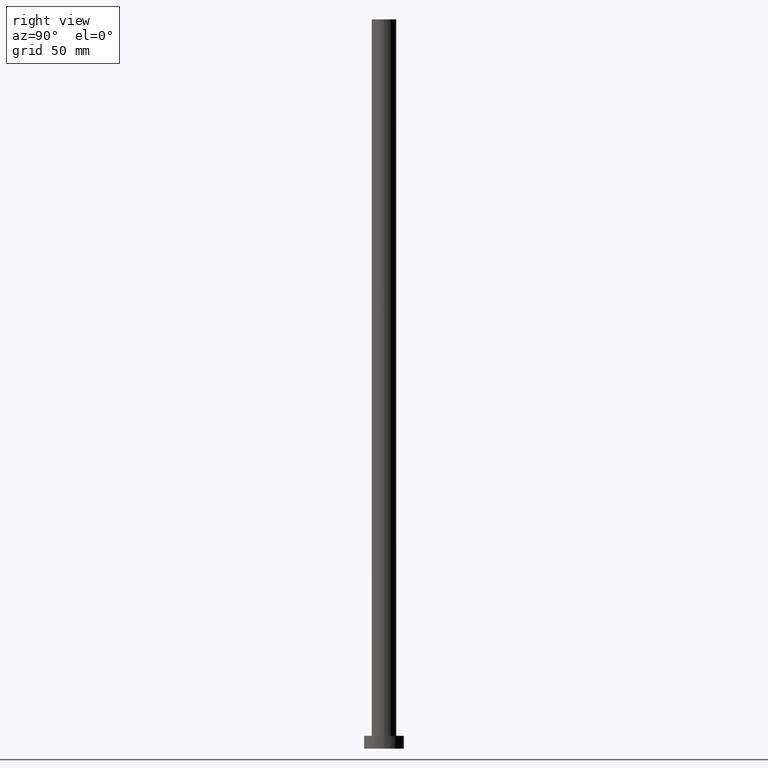
[diagram: clean part render]
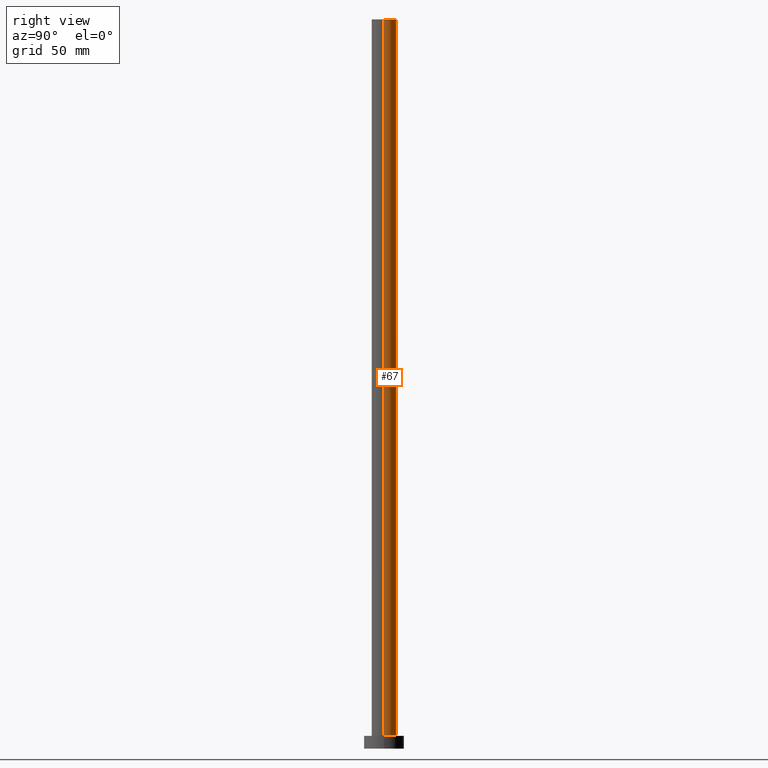
[diagram: same view with one face highlighted and labeled with its STEP entity id]
A machine part, right view. The second image highlights one B-rep face of the part: STEP entity #67.
In plain terms, the highlighted cylindrical surface (edge-blend (fillet) strip) has radius 6.75 mm, axis along (-0, -0, -1).
Its self-contained STEP definition (entity closure, byte-faithful):
#1 = EDGE_CURVE ( 'NONE', #122, #144, #81, .T. ) ;
#3 = ORIENTED_EDGE ( 'NONE', *, *, #1, .F. ) ;
#18 = CARTESIAN_POINT ( 'NONE',  ( 6.750000000000000000, 8.266365894244634333E-16, 400.0000000000000000 ) ) ;
#31 = DIRECTION ( 'NONE',  ( 1.000000000000000000, 0.000000000000000000, 0.000000000000000000 ) ) ;
#42 = EDGE_LOOP ( 'NONE', ( #237, #54, #137, #3 ) ) ;
#44 = AXIS2_PLACEMENT_3D ( 'NONE', #194, #251, #233 ) ;
#49 = EDGE_CURVE ( 'NONE', #177, #122, #214, .T. ) ;
#54 = ORIENTED_EDGE ( 'NONE', *, *, #151, .T. ) ;
#67 = ADVANCED_FACE ( 'NONE', ( #69 ), #209, .T. ) ;
#69 = FACE_OUTER_BOUND ( 'NONE', #42, .T. ) ;
#81 = LINE ( 'NONE', #245, #210 ) ;
#88 = CARTESIAN_POINT ( 'NONE',  ( -6.750000000000000000, 0.000000000000000000, 7.000000000000000000 ) ) ;
#91 = CARTESIAN_POINT ( 'NONE',  ( 0.000000000000000000, 0.000000000000000000, 7.000000000000000000 ) ) ;
#105 = DIRECTION ( 'NONE',  ( -0.000000000000000000, -0.000000000000000000, -1.000000000000000000 ) ) ;
#109 = DIRECTION ( 'NONE',  ( 0.000000000000000000, 0.000000000000000000, 1.000000000000000000 ) ) ;
#112 = CARTESIAN_POINT ( 'NONE',  ( -6.750000000000000000, 0.000000000000000000, 400.0000000000000000 ) ) ;
#122 = VERTEX_POINT ( 'NONE', #112 ) ;
#127 = AXIS2_PLACEMENT_3D ( 'NONE', #166, #150, #212 ) ;
#130 = CARTESIAN_POINT ( 'NONE',  ( 6.750000000000000000, 8.266365894244634333E-16, 400.0000000000000000 ) ) ;
#132 = CARTESIAN_POINT ( 'NONE',  ( 6.750000000000000000, 8.266365894244634333E-16, 7.000000000000000000 ) ) ;
#137 = ORIENTED_EDGE ( 'NONE', *, *, #184, .T. ) ;
#139 = CIRCLE ( 'NONE', #176, 6.750000000000000000 ) ;
#144 = VERTEX_POINT ( 'NONE', #88 ) ;
#150 = DIRECTION ( 'NONE',  ( 0.000000000000000000, 0.000000000000000000, 1.000000000000000000 ) ) ;
#151 = EDGE_CURVE ( 'NONE', #177, #186, #168, .T. ) ;
#166 = CARTESIAN_POINT ( 'NONE',  ( 0.000000000000000000, 0.000000000000000000, 400.0000000000000000 ) ) ;
#168 = LINE ( 'NONE', #130, #193 ) ;
#176 = AXIS2_PLACEMENT_3D ( 'NONE', #91, #109, #31 ) ;
#177 = VERTEX_POINT ( 'NONE', #18 ) ;
#184 = EDGE_CURVE ( 'NONE', #186, #144, #139, .T. ) ;
#186 = VERTEX_POINT ( 'NONE', #132 ) ;
#193 = VECTOR ( 'NONE', #230, 1000.000000000000000 ) ;
#194 = CARTESIAN_POINT ( 'NONE',  ( 0.000000000000000000, 0.000000000000000000, 400.0000000000000000 ) ) ;
#209 = CYLINDRICAL_SURFACE ( 'NONE', #44, 6.750000000000000000 ) ;
#210 = VECTOR ( 'NONE', #105, 1000.000000000000000 ) ;
#212 = DIRECTION ( 'NONE',  ( 1.000000000000000000, 0.000000000000000000, 0.000000000000000000 ) ) ;
#214 = CIRCLE ( 'NONE', #127, 6.750000000000000000 ) ;
#230 = DIRECTION ( 'NONE',  ( -0.000000000000000000, -0.000000000000000000, -1.000000000000000000 ) ) ;
#233 = DIRECTION ( 'NONE',  ( -1.000000000000000000, 0.000000000000000000, 0.000000000000000000 ) ) ;
#237 = ORIENTED_EDGE ( 'NONE', *, *, #49, .F. ) ;
#245 = CARTESIAN_POINT ( 'NONE',  ( -6.750000000000000000, 0.000000000000000000, 400.0000000000000000 ) ) ;
#251 = DIRECTION ( 'NONE',  ( -0.000000000000000000, -0.000000000000000000, -1.000000000000000000 ) ) ;